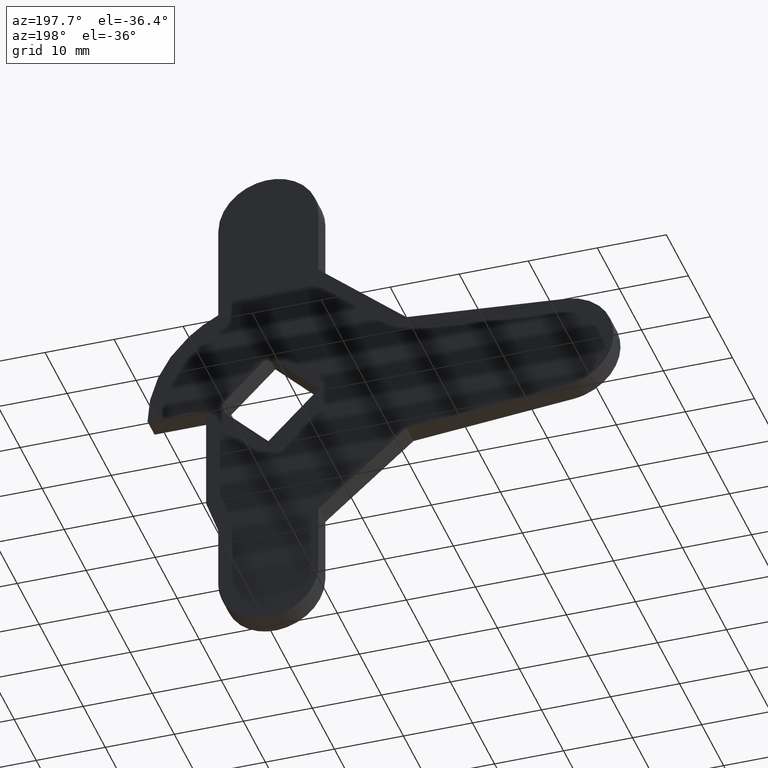
[diagram: clean part render]
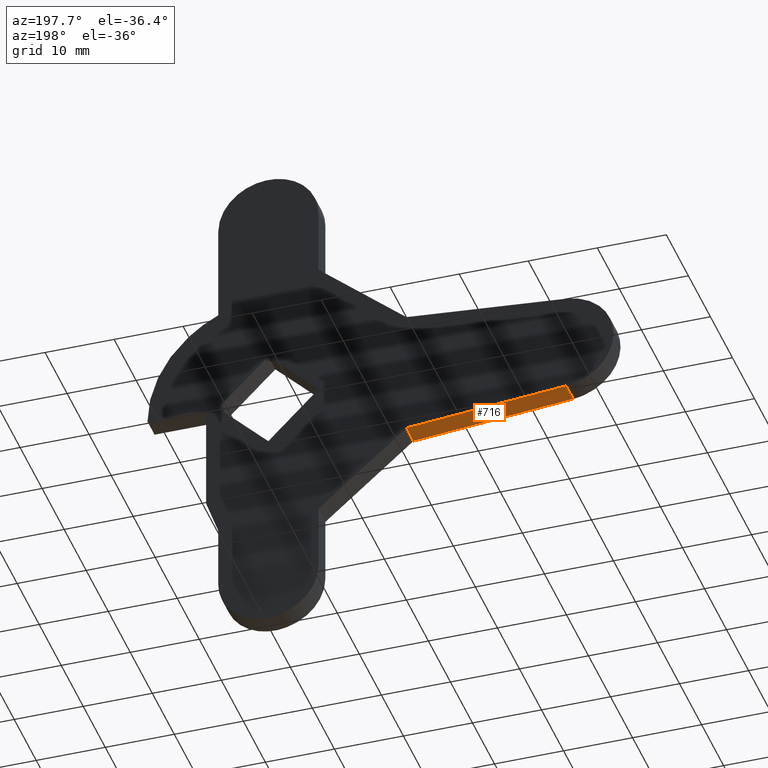
[diagram: same view with one face highlighted and labeled with its STEP entity id]
A machine part, auxiliary view. The second image highlights one B-rep face of the part: STEP entity #716.
In plain terms, the highlighted face is a freeform B-spline surface patch.
Its self-contained STEP definition (entity closure, byte-faithful):
#163=CARTESIAN_POINT('',(-20.0,0.0,-9.500000000000000));
#164=VERTEX_POINT('',#163);
#170=CARTESIAN_POINT('',(-43.154599881245602,0.0,-7.471400010404210));
#171=VERTEX_POINT('',#170);
#172=CARTESIAN_POINT('',(-43.154599881245602,0.0,-7.471400010404210));
#173=CARTESIAN_POINT('',(-20.0,0.0,-9.500000000000000));
#174=QUASI_UNIFORM_CURVE('',1,(#172,#173),.UNSPECIFIED.,.F.,.U.);
#175=EDGE_CURVE('',#171,#164,#174,.T.);
#239=CARTESIAN_POINT('',(-43.154599881245602,-3.199999999999870,-7.471400010404210));
#240=VERTEX_POINT('',#239);
#256=CARTESIAN_POINT('',(-20.0,-3.199999999999870,-9.500000000000000));
#257=VERTEX_POINT('',#256);
#258=CARTESIAN_POINT('',(-43.154599881245602,-3.199999999999870,-7.471400010404210));
#259=CARTESIAN_POINT('',(-20.0,-3.199999999999870,-9.500000000000000));
#260=QUASI_UNIFORM_CURVE('',1,(#258,#259),.UNSPECIFIED.,.F.,.U.);
#261=EDGE_CURVE('',#240,#257,#260,.T.);
#693=CARTESIAN_POINT('',(-20.0,-3.199999999999870,-9.500000000000000));
#694=CARTESIAN_POINT('',(-20.0,0.0,-9.500000000000000));
#695=QUASI_UNIFORM_CURVE('',1,(#693,#694),.UNSPECIFIED.,.F.,.U.);
#696=EDGE_CURVE('',#257,#164,#695,.T.);
#701=CARTESIAN_POINT('',(-44.311170578923992,-3.359840053876265,-7.370071578157038));
#702=CARTESIAN_POINT('',(-18.843427232139060,-3.359840053876265,-9.601328613618147));
#703=CARTESIAN_POINT('',(-44.311170578923992,0.159840082486623,-7.370071578157038));
#704=CARTESIAN_POINT('',(-18.843427232139060,0.159840082486623,-9.601328613618147));
#705=B_SPLINE_SURFACE_WITH_KNOTS('',1,1,((#701,#703),(#702,#704)),.UNSPECIFIED.,.F.,.F.,.U.,(2,2),(2,2),(0.0,25.565297947334841),(0.0,3.519680136362887),.UNSPECIFIED.);
#706=ORIENTED_EDGE('',*,*,#175,.T.);
#707=ORIENTED_EDGE('',*,*,#696,.F.);
#708=ORIENTED_EDGE('',*,*,#261,.F.);
#709=CARTESIAN_POINT('',(-43.154599881245602,-3.199999999999870,-7.471400010404210));
#710=CARTESIAN_POINT('',(-43.154599881245602,0.0,-7.471400010404210));
#711=QUASI_UNIFORM_CURVE('',1,(#709,#710),.UNSPECIFIED.,.F.,.U.);
#712=EDGE_CURVE('',#240,#171,#711,.T.);
#713=ORIENTED_EDGE('',*,*,#712,.T.);
#714=EDGE_LOOP('',(#706,#707,#708,#713));
#715=FACE_OUTER_BOUND('',#714,.T.);
#716=ADVANCED_FACE('',(#715),#705,.F.);